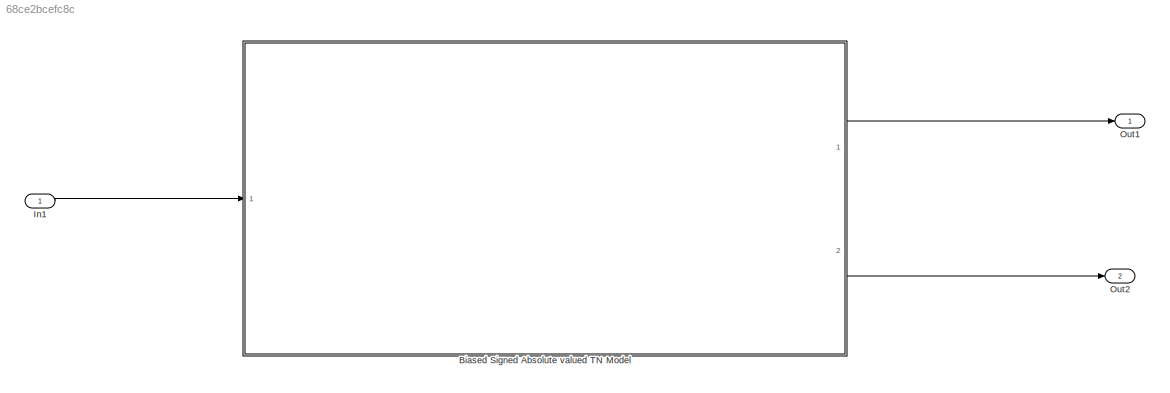
MODEL slx_68ce2bcefc8c
KIND model
CONFIG AbsTol = auto
CONFIG EnableMultiTasking = off
CONFIG FixedStep = 0.1
CONFIG MaxStep = auto
CONFIG MinStep = auto
CONFIG RelTol = 1e-3
CONFIG SampleTimeConstraint = Unconstrained
CONFIG Solver = FixedStepAuto
CONFIG SolverName = FixedStepAuto
CONFIG StartTime = 0.0
CONFIG StopTime = Tsim
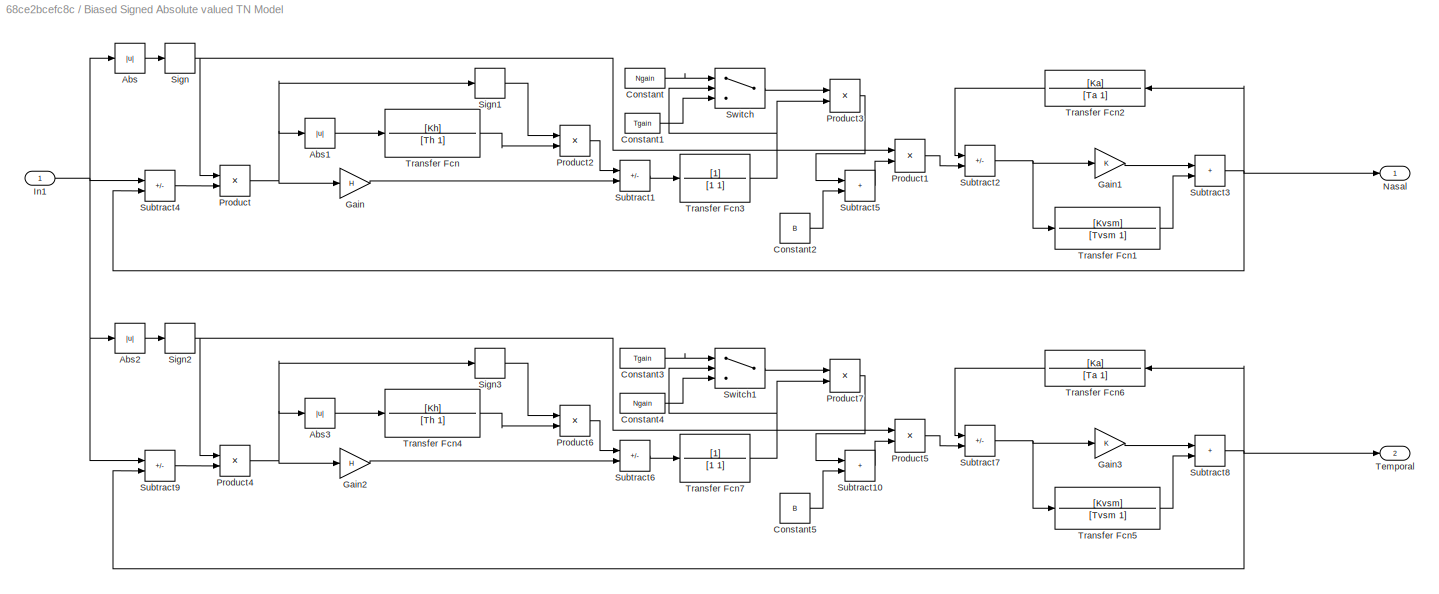
BLOCK [SubSystem] Biased Signed Absolute valued TN Model
  Ports = [1, 2]
  RequestExecContextInheritance = off
BLOCK [Abs] Biased Signed Absolute valued TN Model/Abs
  SaturateOnIntegerOverflow = off
BLOCK [Abs] Biased Signed Absolute valued TN Model/Abs1
  SaturateOnIntegerOverflow = off
BLOCK [Abs] Biased Signed Absolute valued TN Model/Abs2
  SaturateOnIntegerOverflow = off
BLOCK [Abs] Biased Signed Absolute valued TN Model/Abs3
  SaturateOnIntegerOverflow = off
BLOCK [Constant] Biased Signed Absolute valued TN Model/Constant
  Value = Ngain
BLOCK [Constant] Biased Signed Absolute valued TN Model/Constant1
  Value = Tgain
BLOCK [Constant] Biased Signed Absolute valued TN Model/Constant2
  Value = B
BLOCK [Constant] Biased Signed Absolute valued TN Model/Constant3
  Value = Tgain
BLOCK [Constant] Biased Signed Absolute valued TN Model/Constant4
  Value = Ngain
BLOCK [Constant] Biased Signed Absolute valued TN Model/Constant5
  Value = B
BLOCK [Gain] Biased Signed Absolute valued TN Model/Gain
  Gain = H
BLOCK [Gain] Biased Signed Absolute valued TN Model/Gain1
  Gain = K
BLOCK [Gain] Biased Signed Absolute valued TN Model/Gain2
  Gain = H
BLOCK [Gain] Biased Signed Absolute valued TN Model/Gain3
  Gain = K
BLOCK [Inport] Biased Signed Absolute valued TN Model/In1
BLOCK [Outport] Biased Signed Absolute valued TN Model/Nasal
BLOCK [Product] Biased Signed Absolute valued TN Model/Product
  Ports = [2, 1]
BLOCK [Product] Biased Signed Absolute valued TN Model/Product1
  Ports = [2, 1]
BLOCK [Product] Biased Signed Absolute valued TN Model/Product2
  Ports = [2, 1]
BLOCK [Product] Biased Signed Absolute valued TN Model/Product3
  Ports = [2, 1]
BLOCK [Product] Biased Signed Absolute valued TN Model/Product4
  Ports = [2, 1]
BLOCK [Product] Biased Signed Absolute valued TN Model/Product5
  Ports = [2, 1]
BLOCK [Product] Biased Signed Absolute valued TN Model/Product6
  Ports = [2, 1]
BLOCK [Product] Biased Signed Absolute valued TN Model/Product7
  Ports = [2, 1]
BLOCK [Signum] Biased Signed Absolute valued TN Model/Sign
BLOCK [Signum] Biased Signed Absolute valued TN Model/Sign1
BLOCK [Signum] Biased Signed Absolute valued TN Model/Sign2
BLOCK [Signum] Biased Signed Absolute valued TN Model/Sign3
BLOCK [Sum] Biased Signed Absolute valued TN Model/Subtract1
  IconShape = rectangular
  Inputs = -+
  Ports = [2, 1]
BLOCK [Sum] Biased Signed Absolute valued TN Model/Subtract10
  IconShape = rectangular
  Ports = [2, 1]
BLOCK [Sum] Biased Signed Absolute valued TN Model/Subtract2
  IconShape = rectangular
  Inputs = -+
  Ports = [2, 1]
BLOCK [Sum] Biased Signed Absolute valued TN Model/Subtract3
  IconShape = rectangular
  Ports = [2, 1]
BLOCK [Sum] Biased Signed Absolute valued TN Model/Subtract4
  IconShape = rectangular
  Inputs = +-
  Ports = [2, 1]
BLOCK [Sum] Biased Signed Absolute valued TN Model/Subtract5
  IconShape = rectangular
  Ports = [2, 1]
BLOCK [Sum] Biased Signed Absolute valued TN Model/Subtract6
  IconShape = rectangular
  Inputs = -+
  Ports = [2, 1]
BLOCK [Sum] Biased Signed Absolute valued TN Model/Subtract7
  IconShape = rectangular
  Inputs = -+
  Ports = [2, 1]
BLOCK [Sum] Biased Signed Absolute valued TN Model/Subtract8
  IconShape = rectangular
  Ports = [2, 1]
BLOCK [Sum] Biased Signed Absolute valued TN Model/Subtract9
  IconShape = rectangular
  Inputs = +-
  Ports = [2, 1]
BLOCK [Switch] Biased Signed Absolute valued TN Model/Switch
  Criteria = u2 > Threshold
  InputSameDT = off
  SaturateOnIntegerOverflow = off
BLOCK [Switch] Biased Signed Absolute valued TN Model/Switch1
  Criteria = u2 > Threshold
  InputSameDT = off
  SaturateOnIntegerOverflow = off
BLOCK [Outport] Biased Signed Absolute valued TN Model/Temporal
  Port = 2
BLOCK [TransferFcn] Biased Signed Absolute valued TN Model/Transfer Fcn
  Denominator = [Th 1]
  Numerator = [Kh]
BLOCK [TransferFcn] Biased Signed Absolute valued TN Model/Transfer Fcn1
  Denominator = [Tvsm 1]
  Numerator = [Kvsm]
BLOCK [TransferFcn] Biased Signed Absolute valued TN Model/Transfer Fcn2
  Denominator = [Ta 1]
  NameLocation = top
  Numerator = [Ka]
BLOCK [TransferFcn] Biased Signed Absolute valued TN Model/Transfer Fcn3
  Denominator = [1 1]
BLOCK [TransferFcn] Biased Signed Absolute valued TN Model/Transfer Fcn4
  Denominator = [Th 1]
  Numerator = [Kh]
BLOCK [TransferFcn] Biased Signed Absolute valued TN Model/Transfer Fcn5
  Denominator = [Tvsm 1]
  Numerator = [Kvsm]
BLOCK [TransferFcn] Biased Signed Absolute valued TN Model/Transfer Fcn6
  Denominator = [Ta 1]
  NameLocation = top
  Numerator = [Ka]
BLOCK [TransferFcn] Biased Signed Absolute valued TN Model/Transfer Fcn7
  Denominator = [1 1]
BLOCK [Inport] In1
BLOCK [Outport] Out1
BLOCK [Outport] Out2
  Port = 2
LINE Biased Signed Absolute valued TN Model/Abs1:1 -> Biased Signed Absolute valued TN Model/Transfer Fcn:1
LINE Biased Signed Absolute valued TN Model/Abs2:1 -> Biased Signed Absolute valued TN Model/Sign2:1
LINE Biased Signed Absolute valued TN Model/Abs3:1 -> Biased Signed Absolute valued TN Model/Transfer Fcn4:1
LINE Biased Signed Absolute valued TN Model/Abs:1 -> Biased Signed Absolute valued TN Model/Sign:1
LINE Biased Signed Absolute valued TN Model/Constant1:1 -> Biased Signed Absolute valued TN Model/Switch:3
LINE Biased Signed Absolute valued TN Model/Constant2:1 -> Biased Signed Absolute valued TN Model/Subtract5:2
LINE Biased Signed Absolute valued TN Model/Constant3:1 -> Biased Signed Absolute valued TN Model/Switch1:1
LINE Biased Signed Absolute valued TN Model/Constant4:1 -> Biased Signed Absolute valued TN Model/Switch1:3
LINE Biased Signed Absolute valued TN Model/Constant5:1 -> Biased Signed Absolute valued TN Model/Subtract10:2
LINE Biased Signed Absolute valued TN Model/Constant:1 -> Biased Signed Absolute valued TN Model/Switch:1
LINE Biased Signed Absolute valued TN Model/Gain1:1 -> Biased Signed Absolute valued TN Model/Subtract3:1
LINE Biased Signed Absolute valued TN Model/Gain2:1 -> Biased Signed Absolute valued TN Model/Subtract6:2
LINE Biased Signed Absolute valued TN Model/Gain3:1 -> Biased Signed Absolute valued TN Model/Subtract8:1
LINE Biased Signed Absolute valued TN Model/Gain:1 -> Biased Signed Absolute valued TN Model/Subtract1:2
NET Biased Signed Absolute valued TN Model/In1:1 -> Biased Signed Absolute valued TN Model/Abs2:1, Biased Signed Absolute valued TN Model/Abs:1, Biased Signed Absolute valued TN Model/Subtract4:1, Biased Signed Absolute valued TN Model/Subtract9:1
LINE Biased Signed Absolute valued TN Model/Product1:1 -> Biased Signed Absolute valued TN Model/Subtract2:2
LINE Biased Signed Absolute valued TN Model/Product2:1 -> Biased Signed Absolute valued TN Model/Subtract1:1
LINE Biased Signed Absolute valued TN Model/Product3:1 -> Biased Signed Absolute valued TN Model/Subtract5:1
NET Biased Signed Absolute valued TN Model/Product4:1 -> Biased Signed Absolute valued TN Model/Abs3:1, Biased Signed Absolute valued TN Model/Gain2:1, Biased Signed Absolute valued TN Model/Sign3:1
LINE Biased Signed Absolute valued TN Model/Product5:1 -> Biased Signed Absolute valued TN Model/Subtract7:2
LINE Biased Signed Absolute valued TN Model/Product6:1 -> Biased Signed Absolute valued TN Model/Subtract6:1
LINE Biased Signed Absolute valued TN Model/Product7:1 -> Biased Signed Absolute valued TN Model/Subtract10:1
NET Biased Signed Absolute valued TN Model/Product:1 -> Biased Signed Absolute valued TN Model/Abs1:1, Biased Signed Absolute valued TN Model/Gain:1, Biased Signed Absolute valued TN Model/Sign1:1
LINE Biased Signed Absolute valued TN Model/Sign1:1 -> Biased Signed Absolute valued TN Model/Product2:1
NET Biased Signed Absolute valued TN Model/Sign2:1 -> Biased Signed Absolute valued TN Model/Product4:1, Biased Signed Absolute valued TN Model/Product5:1
LINE Biased Signed Absolute valued TN Model/Sign3:1 -> Biased Signed Absolute valued TN Model/Product6:1
NET Biased Signed Absolute valued TN Model/Sign:1 -> Biased Signed Absolute valued TN Model/Product1:1, Biased Signed Absolute valued TN Model/Product:1
LINE Biased Signed Absolute valued TN Model/Subtract10:1 -> Biased Signed Absolute valued TN Model/Product5:2
LINE Biased Signed Absolute valued TN Model/Subtract1:1 -> Biased Signed Absolute valued TN Model/Transfer Fcn3:1
NET Biased Signed Absolute valued TN Model/Subtract2:1 -> Biased Signed Absolute valued TN Model/Gain1:1, Biased Signed Absolute valued TN Model/Transfer Fcn1:1
NET Biased Signed Absolute valued TN Model/Subtract3:1 -> Biased Signed Absolute valued TN Model/Nasal:1, Biased Signed Absolute valued TN Model/Subtract4:2, Biased Signed Absolute valued TN Model/Transfer Fcn2:1
LINE Biased Signed Absolute valued TN Model/Subtract4:1 -> Biased Signed Absolute valued TN Model/Product:2
LINE Biased Signed Absolute valued TN Model/Subtract5:1 -> Biased Signed Absolute valued TN Model/Product1:2
LINE Biased Signed Absolute valued TN Model/Subtract6:1 -> Biased Signed Absolute valued TN Model/Transfer Fcn7:1
NET Biased Signed Absolute valued TN Model/Subtract7:1 -> Biased Signed Absolute valued TN Model/Gain3:1, Biased Signed Absolute valued TN Model/Transfer Fcn5:1
NET Biased Signed Absolute valued TN Model/Subtract8:1 -> Biased Signed Absolute valued TN Model/Subtract9:2, Biased Signed Absolute valued TN Model/Temporal:1, Biased Signed Absolute valued TN Model/Transfer Fcn6:1
LINE Biased Signed Absolute valued TN Model/Subtract9:1 -> Biased Signed Absolute valued TN Model/Product4:2
LINE Biased Signed Absolute valued TN Model/Switch1:1 -> Biased Signed Absolute valued TN Model/Product7:1
LINE Biased Signed Absolute valued TN Model/Switch:1 -> Biased Signed Absolute valued TN Model/Product3:1
LINE Biased Signed Absolute valued TN Model/Transfer Fcn1:1 -> Biased Signed Absolute valued TN Model/Subtract3:2
LINE Biased Signed Absolute valued TN Model/Transfer Fcn2:1 -> Biased Signed Absolute valued TN Model/Subtract2:1
NET Biased Signed Absolute valued TN Model/Transfer Fcn3:1 -> Biased Signed Absolute valued TN Model/Product3:2, Biased Signed Absolute valued TN Model/Switch:2
LINE Biased Signed Absolute valued TN Model/Transfer Fcn4:1 -> Biased Signed Absolute valued TN Model/Product6:2
LINE Biased Signed Absolute valued TN Model/Transfer Fcn5:1 -> Biased Signed Absolute valued TN Model/Subtract8:2
LINE Biased Signed Absolute valued TN Model/Transfer Fcn6:1 -> Biased Signed Absolute valued TN Model/Subtract7:1
NET Biased Signed Absolute valued TN Model/Transfer Fcn7:1 -> Biased Signed Absolute valued TN Model/Product7:2, Biased Signed Absolute valued TN Model/Switch1:2
LINE Biased Signed Absolute valued TN Model/Transfer Fcn:1 -> Biased Signed Absolute valued TN Model/Product2:2
LINE Biased Signed Absolute valued TN Model:1 -> Out1:1
LINE Biased Signed Absolute valued TN Model:2 -> Out2:1
LINE In1:1 -> Biased Signed Absolute valued TN Model:1
note: NET lines group one-source signal fan-out (src -> all destinations, sorted); 1:1 wires keep LINE
